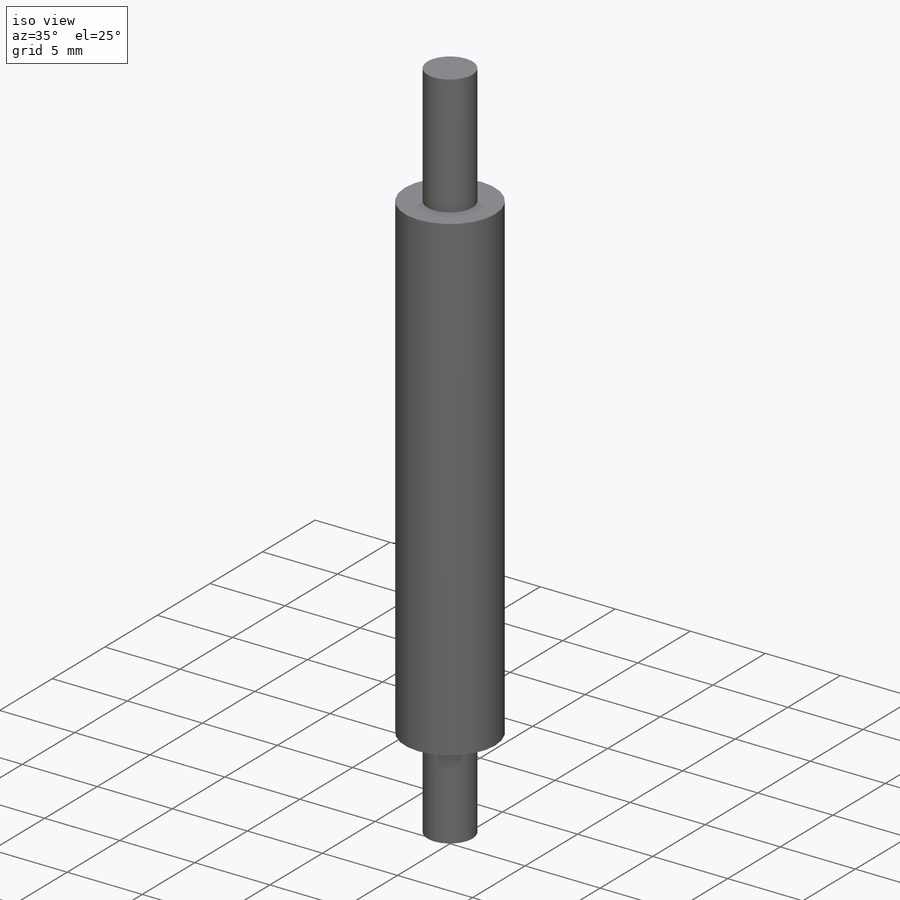
[diagram: iso view]
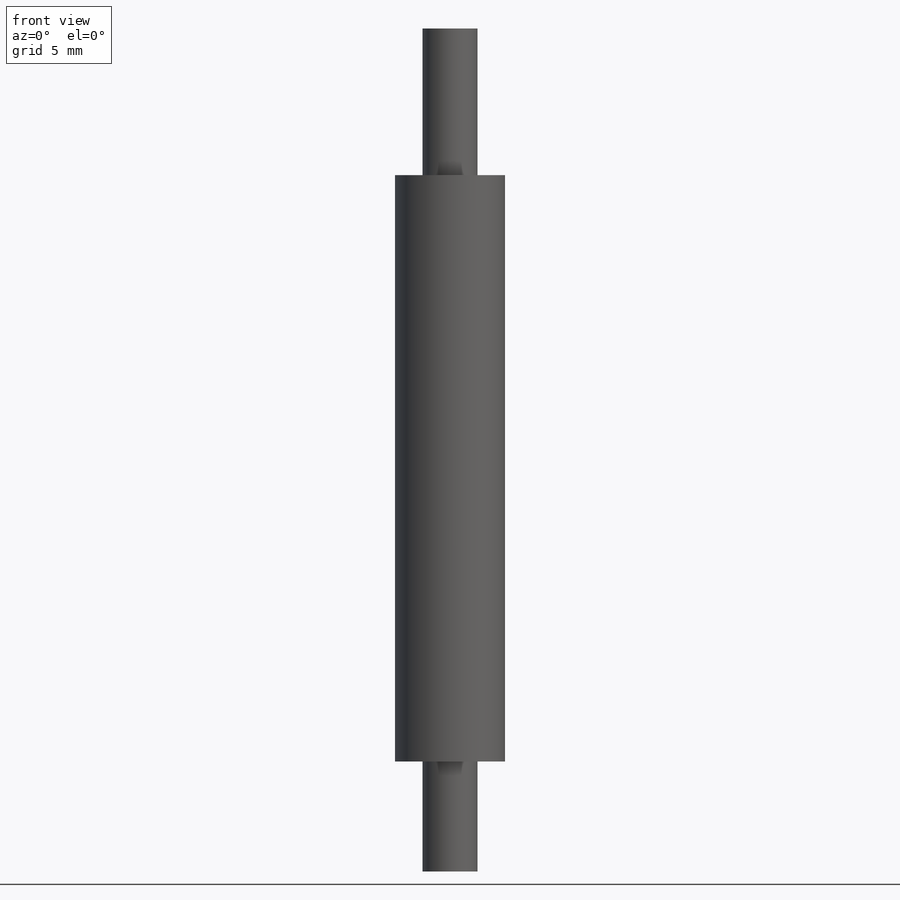
[diagram: front view]
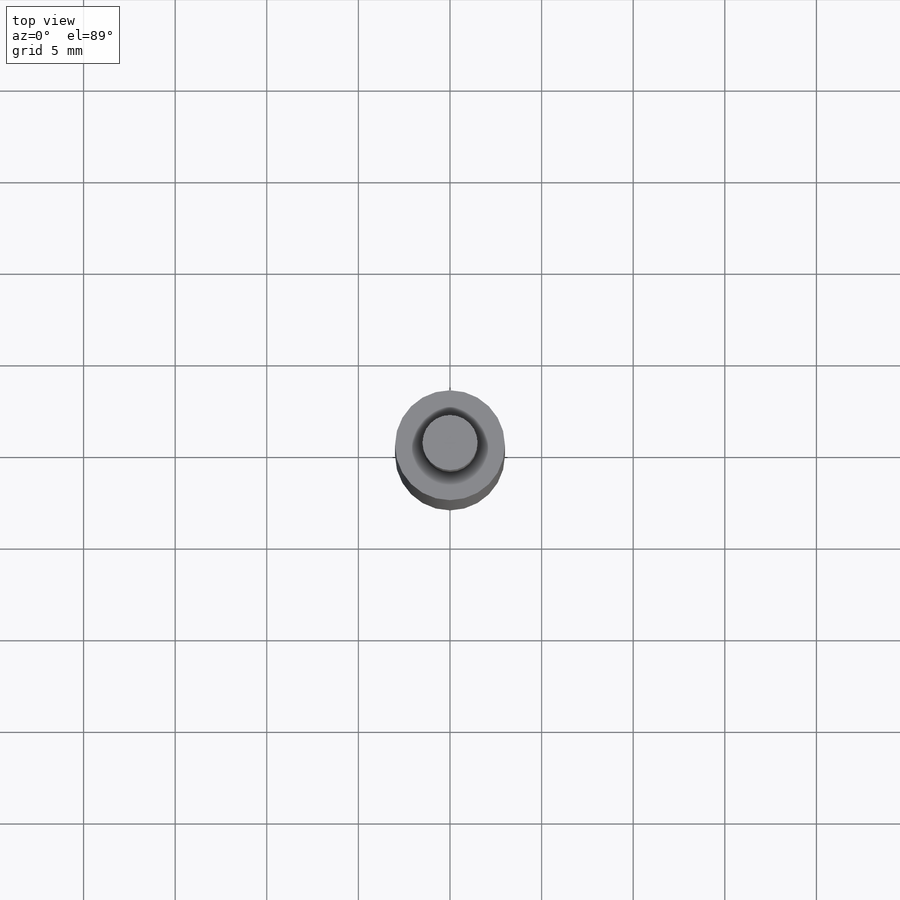
[diagram: top view]
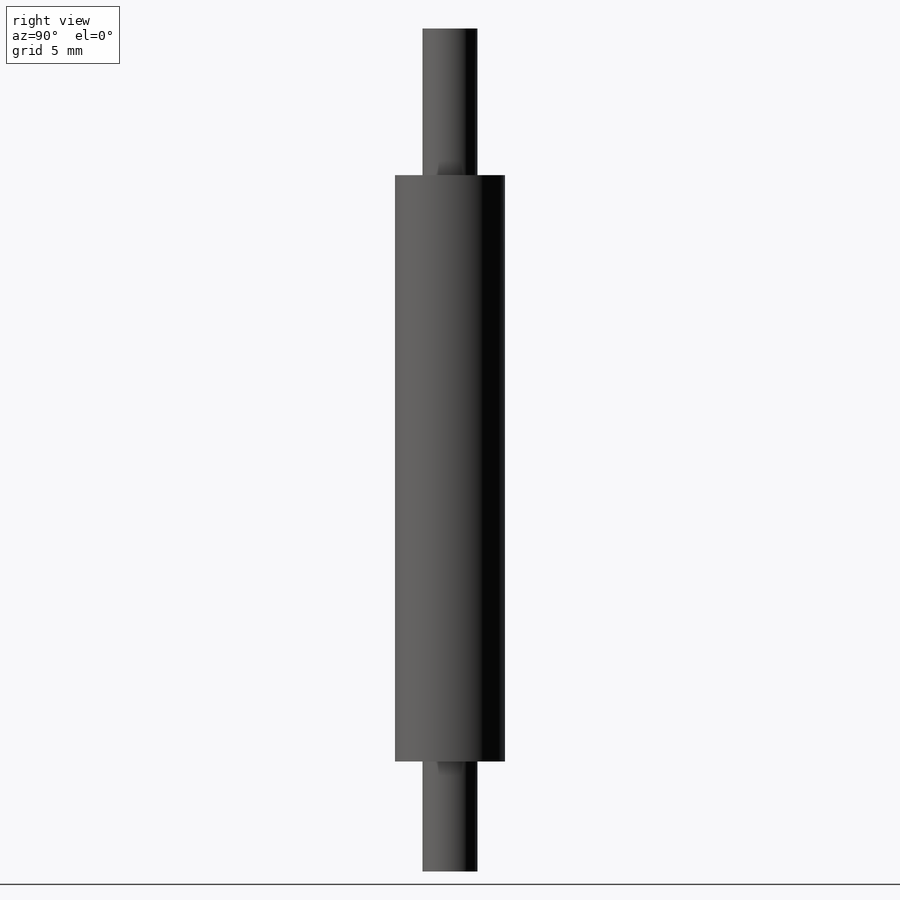
[diagram: right view]
SOLIDWORKS PART (.sldprt)
format: sldprt  version: not decoded by parser v0  size: 111,616 bytes
history: native  units: mm
features: sketch x3, extrude x3, thread x2, material x1 (+11 scaffold rows collapsed)
feature tree (20):
  scaffold x11  (default folders/planes/origin — collapsed)
  material  "Material <not specified>"
  sketch  "Sketch1"  dims[D1=3.0mm]
  extrude  "Boss-Extrude1"  [1 undecoded]
  thread  "Cosmetic Thread2"  Diameter=2.439mm  [1 undecoded]
  sketch  "Sketch2"  dims[D1=6.0mm]
  extrude  "Boss-Extrude2"  Depth=32mm
  sketch  "Sketch3"  dims[D1=3.0mm]
  extrude  "Boss-Extrude3"  [1 undecoded]
  thread  "Cosmetic Thread1"  Diameter=2.439mm  [1 undecoded]
decode coverage: 6 of 8 modeling features carry decoded parameters
note: 4 parameter values undecoded
note: suppression state not decoded; provenance and decode notes live in map.json
